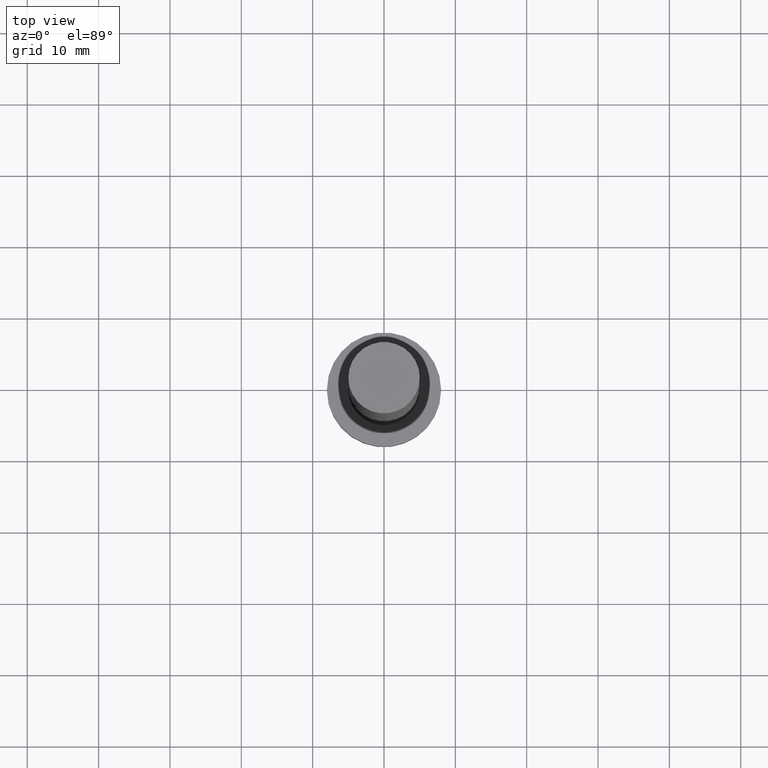
[diagram: clean part render]
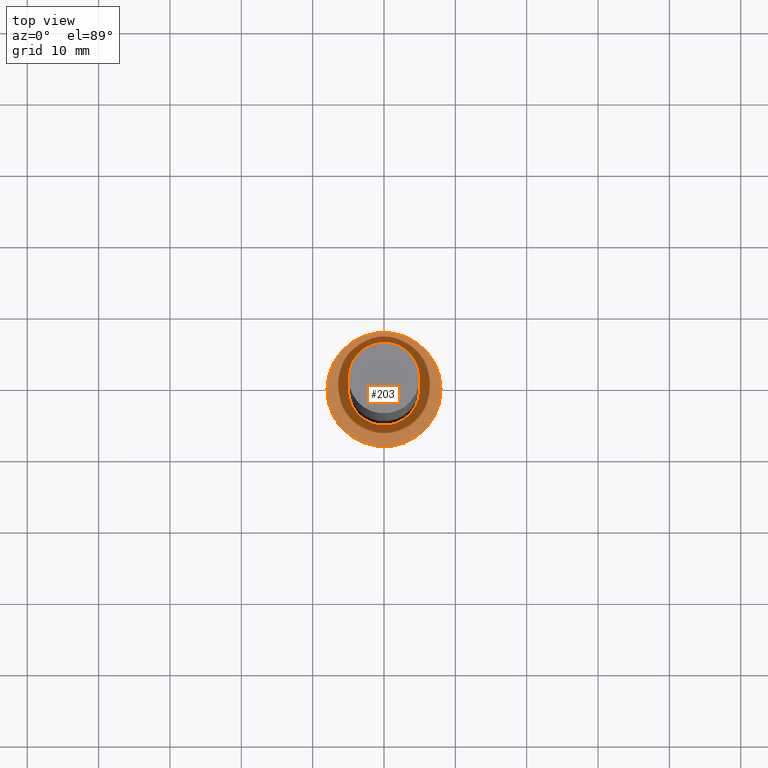
[diagram: same view with one face highlighted and labeled with its STEP entity id]
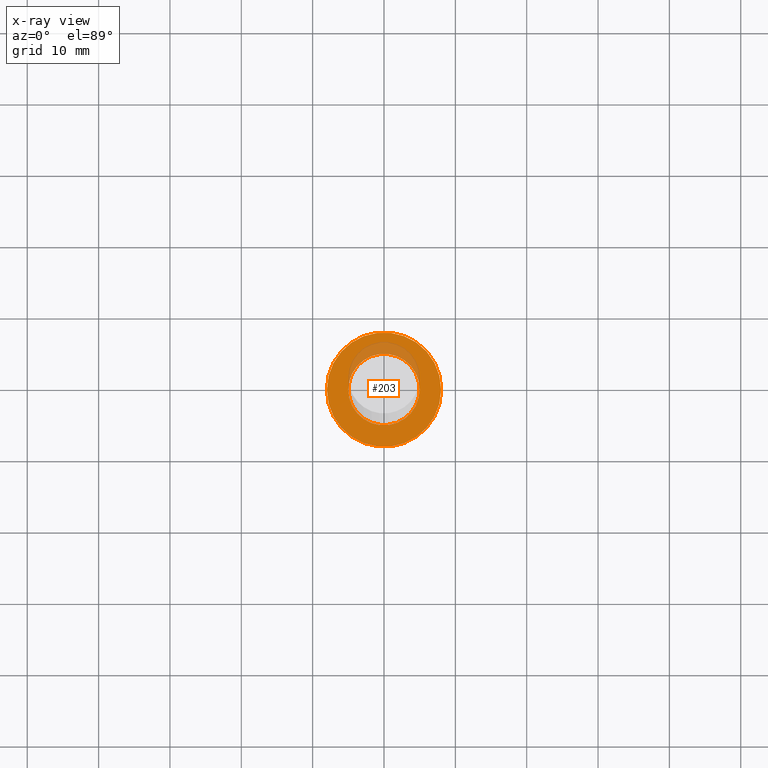
[diagram: x-ray of the same camera — body ghosted, the highlighted face saturated]
A machine part, top view. The second image highlights one B-rep face of the part: STEP entity #203.
The next image is the same camera in x-ray: the body ghosted, the highlighted face saturated — about 14% of this face is hidden behind the body in this view.
In plain terms, the highlighted planar face has unit normal (0, 0, 1).
Its self-contained STEP definition (entity closure, byte-faithful):
#18 = ORIENTED_EDGE ( 'NONE', *, *, #75, .T. ) ;
#21 = EDGE_LOOP ( 'NONE', ( #118, #156 ) ) ;
#26 = CARTESIAN_POINT ( 'NONE',  ( 0.000000000000000000, 0.000000000000000000, 5.000000000000000000 ) ) ;
#35 = CARTESIAN_POINT ( 'NONE',  ( 0.000000000000000000, 0.000000000000000000, 5.000000000000000000 ) ) ;
#36 = DIRECTION ( 'NONE',  ( 0.000000000000000000, 0.000000000000000000, 1.000000000000000000 ) ) ;
#37 = CARTESIAN_POINT ( 'NONE',  ( 0.000000000000000000, 0.000000000000000000, 5.000000000000000000 ) ) ;
#42 = CARTESIAN_POINT ( 'NONE',  ( -8.000000000000000000, 0.000000000000000000, 5.000000000000000000 ) ) ;
#48 = AXIS2_PLACEMENT_3D ( 'NONE', #35, #36, #121 ) ;
#52 = DIRECTION ( 'NONE',  ( 1.000000000000000000, 0.000000000000000000, 0.000000000000000000 ) ) ;
#61 = DIRECTION ( 'NONE',  ( 0.000000000000000000, 0.000000000000000000, 1.000000000000000000 ) ) ;
#63 = FACE_OUTER_BOUND ( 'NONE', #197, .T. ) ;
#67 = EDGE_CURVE ( 'NONE', #104, #194, #160, .T. ) ;
#75 = EDGE_CURVE ( 'NONE', #194, #104, #97, .T. ) ;
#86 = EDGE_CURVE ( 'NONE', #134, #178, #174, .T. ) ;
#97 = CIRCLE ( 'NONE', #241, 8.000000000000000000 ) ;
#104 = VERTEX_POINT ( 'NONE', #42 ) ;
#108 = CARTESIAN_POINT ( 'NONE',  ( 5.000000000000000000, 6.123233995736766282E-16, 5.000000000000000000 ) ) ;
#118 = ORIENTED_EDGE ( 'NONE', *, *, #159, .F. ) ;
#121 = DIRECTION ( 'NONE',  ( 1.000000000000000000, 0.000000000000000000, 0.000000000000000000 ) ) ;
#123 = CARTESIAN_POINT ( 'NONE',  ( 0.000000000000000000, 0.000000000000000000, 5.000000000000000000 ) ) ;
#124 = DIRECTION ( 'NONE',  ( 1.000000000000000000, 0.000000000000000000, 0.000000000000000000 ) ) ;
#125 = CARTESIAN_POINT ( 'NONE',  ( 8.000000000000000000, 9.797174393178825657E-16, 5.000000000000000000 ) ) ;
#134 = VERTEX_POINT ( 'NONE', #108 ) ;
#136 = AXIS2_PLACEMENT_3D ( 'NONE', #26, #61, #124 ) ;
#144 = CIRCLE ( 'NONE', #136, 5.000000000000000000 ) ;
#146 = PLANE ( 'NONE',  #210 ) ;
#153 = DIRECTION ( 'NONE',  ( 0.000000000000000000, 0.000000000000000000, 1.000000000000000000 ) ) ;
#156 = ORIENTED_EDGE ( 'NONE', *, *, #86, .F. ) ;
#159 = EDGE_CURVE ( 'NONE', #178, #134, #144, .T. ) ;
#160 = CIRCLE ( 'NONE', #189, 8.000000000000000000 ) ;
#167 = CARTESIAN_POINT ( 'NONE',  ( -5.000000000000000000, 0.000000000000000000, 5.000000000000000000 ) ) ;
#174 = CIRCLE ( 'NONE', #48, 5.000000000000000000 ) ;
#178 = VERTEX_POINT ( 'NONE', #167 ) ;
#181 = ORIENTED_EDGE ( 'NONE', *, *, #67, .T. ) ;
#186 = CARTESIAN_POINT ( 'NONE',  ( 0.000000000000000000, 0.000000000000000000, 5.000000000000000000 ) ) ;
#189 = AXIS2_PLACEMENT_3D ( 'NONE', #37, #233, #253 ) ;
#194 = VERTEX_POINT ( 'NONE', #125 ) ;
#197 = EDGE_LOOP ( 'NONE', ( #181, #18 ) ) ;
#201 = DIRECTION ( 'NONE',  ( 1.000000000000000000, 0.000000000000000000, -0.000000000000000000 ) ) ;
#203 = ADVANCED_FACE ( 'NONE', ( #208, #63 ), #146, .T. ) ;
#208 = FACE_BOUND ( 'NONE', #21, .T. ) ;
#210 = AXIS2_PLACEMENT_3D ( 'NONE', #186, #239, #201 ) ;
#233 = DIRECTION ( 'NONE',  ( 0.000000000000000000, 0.000000000000000000, 1.000000000000000000 ) ) ;
#239 = DIRECTION ( 'NONE',  ( 0.000000000000000000, 0.000000000000000000, 1.000000000000000000 ) ) ;
#241 = AXIS2_PLACEMENT_3D ( 'NONE', #123, #153, #52 ) ;
#253 = DIRECTION ( 'NONE',  ( 1.000000000000000000, 0.000000000000000000, 0.000000000000000000 ) ) ;